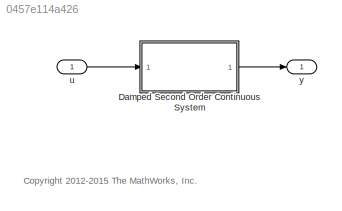
MODEL slx_0457e114a426
KIND model
CONFIG AbsTol = auto
CONFIG EnableMultiTasking = on
CONFIG FixedStep = auto
CONFIG MaxStep = 0.1
CONFIG MinStep = auto
CONFIG RelTol = 1e-3
CONFIG SampleTimeConstraint = Unconstrained
CONFIG Solver = ode45
CONFIG SolverName = ode45
CONFIG StartTime = 0.0
CONFIG StopTime = 10.0
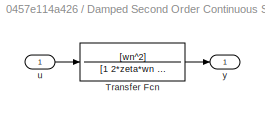
BLOCK [SubSystem] Damped Second Order Continuous System
  Ports = [1, 1]
  RequestExecContextInheritance = off
  Variant = off
BLOCK [TransferFcn] Damped Second Order Continuous System/Transfer Fcn
  Denominator = [1 2*zeta*wn wn^2]
  Numerator = [wn^2]
BLOCK [Inport] Damped Second Order Continuous System/u
  IconDisplay = Port number
BLOCK [Outport] Damped Second Order Continuous System/y
  IconDisplay = Port number
BLOCK [Inport] u
  IconDisplay = Port number
BLOCK [Outport] y
  IconDisplay = Port number
ANNOTATION (root): <copyright redacted>
LINE Damped Second Order Continuous System/Transfer Fcn:1 -> Damped Second Order Continuous System/y:1
LINE Damped Second Order Continuous System/u:1 -> Damped Second Order Continuous System/Transfer Fcn:1
LINE Damped Second Order Continuous System:1 -> y:1
LINE u:1 -> Damped Second Order Continuous System:1
